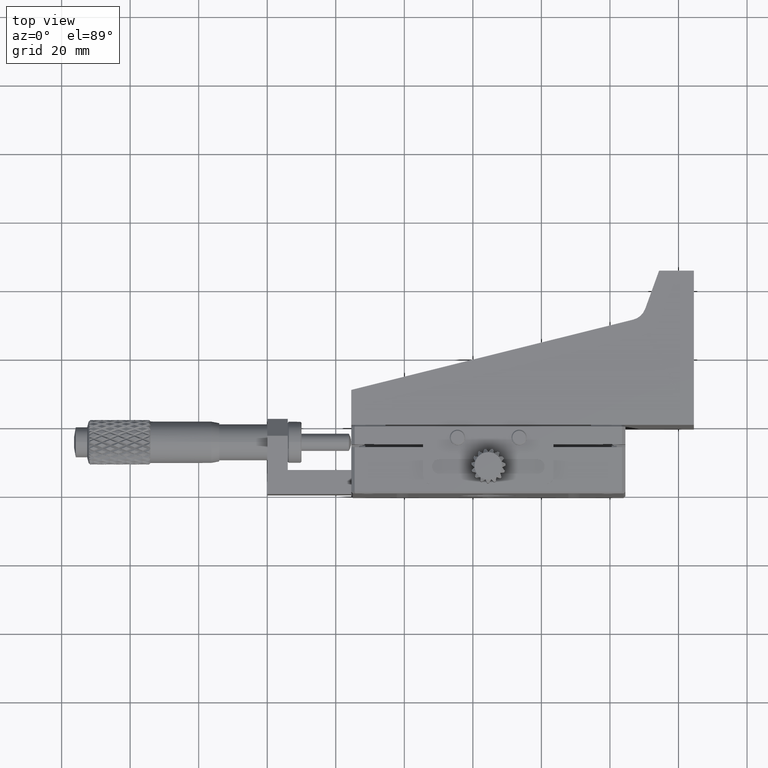
[diagram: clean part render]
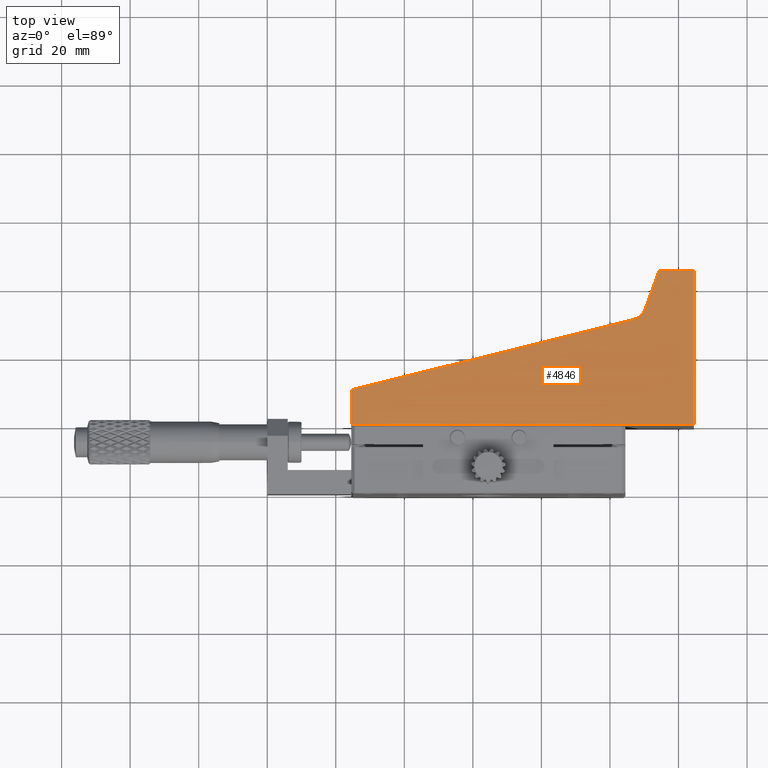
[diagram: same view with one face highlighted and labeled with its STEP entity id]
A machine part, top view. The second image highlights one B-rep face of the part: STEP entity #4846.
In plain terms, the highlighted planar face has unit normal (0, 0, 1).
Its self-contained STEP definition (entity closure, byte-faithful):
#173 = CARTESIAN_POINT ( 'NONE',  ( 110.2788143579730757, 53.54648990748307824, 40.00000000000000000 ) ) ;
#914 = EDGE_CURVE ( 'NONE', #26867, #29200, #8549, .T. ) ;
#1797 = CARTESIAN_POINT ( 'NONE',  ( 24.50000000000000000, 55.25645668702769342, 40.00000000000000000 ) ) ;
#3286 = EDGE_CURVE ( 'NONE', #30863, #34710, #8139, .T. ) ;
#4846 = ADVANCED_FACE ( 'NONE', ( #23692 ), #19124, .T. ) ;
#5348 = LINE ( 'NONE', #1797, #35756 ) ;
#6038 = VECTOR ( 'NONE', #16223, 1000.000000000000000 ) ;
#6924 = ORIENTED_EDGE ( 'NONE', *, *, #48674, .T. ) ;
#7186 = CARTESIAN_POINT ( 'NONE',  ( 105.5803025070938048, 55.25645668702769342, 40.00000000000000000 ) ) ;
#7912 = CARTESIAN_POINT ( 'NONE',  ( 124.5000000000000000, 19.69999999999999929, 40.00000000000000000 ) ) ;
#8139 = LINE ( 'NONE', #22640, #11632 ) ;
#8549 = LINE ( 'NONE', #43261, #14834 ) ;
#10296 = CARTESIAN_POINT ( 'NONE',  ( 24.50000000000000000, 19.69999999999999929, 40.00000000000000000 ) ) ;
#11632 = VECTOR ( 'NONE', #46687, 999.9999999999998863 ) ;
#11692 = CARTESIAN_POINT ( 'NONE',  ( 24.50000000000000000, 19.69999999999999929, 40.00000000000000000 ) ) ;
#12812 = VERTEX_POINT ( 'NONE', #38294 ) ;
#13762 = EDGE_CURVE ( 'NONE', #28110, #30863, #49142, .T. ) ;
#14834 = VECTOR ( 'NONE', #20483, 1000.000000000000000 ) ;
#16223 = DIRECTION ( 'NONE',  ( 1.000000000000000000, 0.000000000000000000, -0.000000000000000000 ) ) ;
#16771 = AXIS2_PLACEMENT_3D ( 'NONE', #28825, #36443, #29076 ) ;
#18026 = VERTEX_POINT ( 'NONE', #10296 ) ;
#18112 = DIRECTION ( 'NONE',  ( -1.000000000000000000, -0.000000000000000000, 0.000000000000000000 ) ) ;
#18894 = VECTOR ( 'NONE', #18112, 1000.000000000000000 ) ;
#19124 = PLANE ( 'NONE',  #34282 ) ;
#19294 = LINE ( 'NONE', #11692, #6038 ) ;
#20483 = DIRECTION ( 'NONE',  ( 0.000000000000000000, 1.000000000000000000, -0.000000000000000000 ) ) ;
#21490 = CARTESIAN_POINT ( 'NONE',  ( 106.7899008257490152, 50.40497527332474448, 40.00000000000000000 ) ) ;
#22640 = CARTESIAN_POINT ( 'NONE',  ( 106.7899008426495016, 50.40497527753849738, 40.00000000000000000 ) ) ;
#23239 = EDGE_LOOP ( 'NONE', ( #32187, #46969, #43714, #25947, #6924, #37361, #37276 ) ) ;
#23692 = FACE_OUTER_BOUND ( 'NONE', #23239, .T. ) ;
#25947 = ORIENTED_EDGE ( 'NONE', *, *, #26269, .T. ) ;
#26269 = EDGE_CURVE ( 'NONE', #34710, #18026, #5348, .T. ) ;
#26780 = EDGE_CURVE ( 'NONE', #12812, #28110, #35032, .T. ) ;
#26867 = VERTEX_POINT ( 'NONE', #7912 ) ;
#26872 = VECTOR ( 'NONE', #38084, 999.9999999999998863 ) ;
#27710 = CARTESIAN_POINT ( 'NONE',  ( 24.50000000000000000, 29.88800000000000168, 40.00000000000000000 ) ) ;
#28110 = VERTEX_POINT ( 'NONE', #173 ) ;
#28385 = EDGE_CURVE ( 'NONE', #29200, #12812, #29982, .T. ) ;
#28825 = CARTESIAN_POINT ( 'NONE',  ( 105.5803025070938048, 55.25645668702769342, 40.00000000000000000 ) ) ;
#29076 = DIRECTION ( 'NONE',  ( -1.000000000000000000, 0.000000000000000000, 0.000000000000000000 ) ) ;
#29200 = VERTEX_POINT ( 'NONE', #37403 ) ;
#29982 = LINE ( 'NONE', #30475, #18894 ) ;
#30475 = CARTESIAN_POINT ( 'NONE',  ( 105.5803025070938048, 64.69999999999998863, 40.00000000000000000 ) ) ;
#30863 = VERTEX_POINT ( 'NONE', #21490 ) ;
#30973 = CARTESIAN_POINT ( 'NONE',  ( 114.3379999999999939, 64.69999999999998863, 40.00000000000000000 ) ) ;
#32187 = ORIENTED_EDGE ( 'NONE', *, *, #26780, .T. ) ;
#32730 = DIRECTION ( 'NONE',  ( 0.000000000000000000, -1.000000000000000000, -0.000000000000000000 ) ) ;
#34282 = AXIS2_PLACEMENT_3D ( 'NONE', #7186, #38866, #34548 ) ;
#34548 = DIRECTION ( 'NONE',  ( 1.000000000000000000, 0.000000000000000000, -0.000000000000000000 ) ) ;
#34710 = VERTEX_POINT ( 'NONE', #27710 ) ;
#35032 = LINE ( 'NONE', #30973, #26872 ) ;
#35756 = VECTOR ( 'NONE', #32730, 1000.000000000000000 ) ;
#36443 = DIRECTION ( 'NONE',  ( 0.000000000000000000, 0.000000000000000000, -1.000000000000000000 ) ) ;
#37276 = ORIENTED_EDGE ( 'NONE', *, *, #28385, .T. ) ;
#37361 = ORIENTED_EDGE ( 'NONE', *, *, #914, .T. ) ;
#37403 = CARTESIAN_POINT ( 'NONE',  ( 124.5000000000000284, 64.70000000000000284, 40.00000000000000000 ) ) ;
#38084 = DIRECTION ( 'NONE',  ( -0.3419933576580345136, -0.9397023695393046383, 0.000000000000000000 ) ) ;
#38294 = CARTESIAN_POINT ( 'NONE',  ( 114.3380000000000223, 64.70000000000000284, 40.00000000000000000 ) ) ;
#38866 = DIRECTION ( 'NONE',  ( 0.000000000000000000, 0.000000000000000000, 1.000000000000000000 ) ) ;
#43261 = CARTESIAN_POINT ( 'NONE',  ( 124.5000000000000000, 19.69999999999999929, 40.00000000000000000 ) ) ;
#43714 = ORIENTED_EDGE ( 'NONE', *, *, #3286, .T. ) ;
#46687 = DIRECTION ( 'NONE',  ( -0.9702962835833600641, -0.2419196603509519428, 0.000000000000000000 ) ) ;
#46969 = ORIENTED_EDGE ( 'NONE', *, *, #13762, .T. ) ;
#48674 = EDGE_CURVE ( 'NONE', #18026, #26867, #19294, .T. ) ;
#49142 = CIRCLE ( 'NONE', #16771, 4.999999999999920952 ) ;